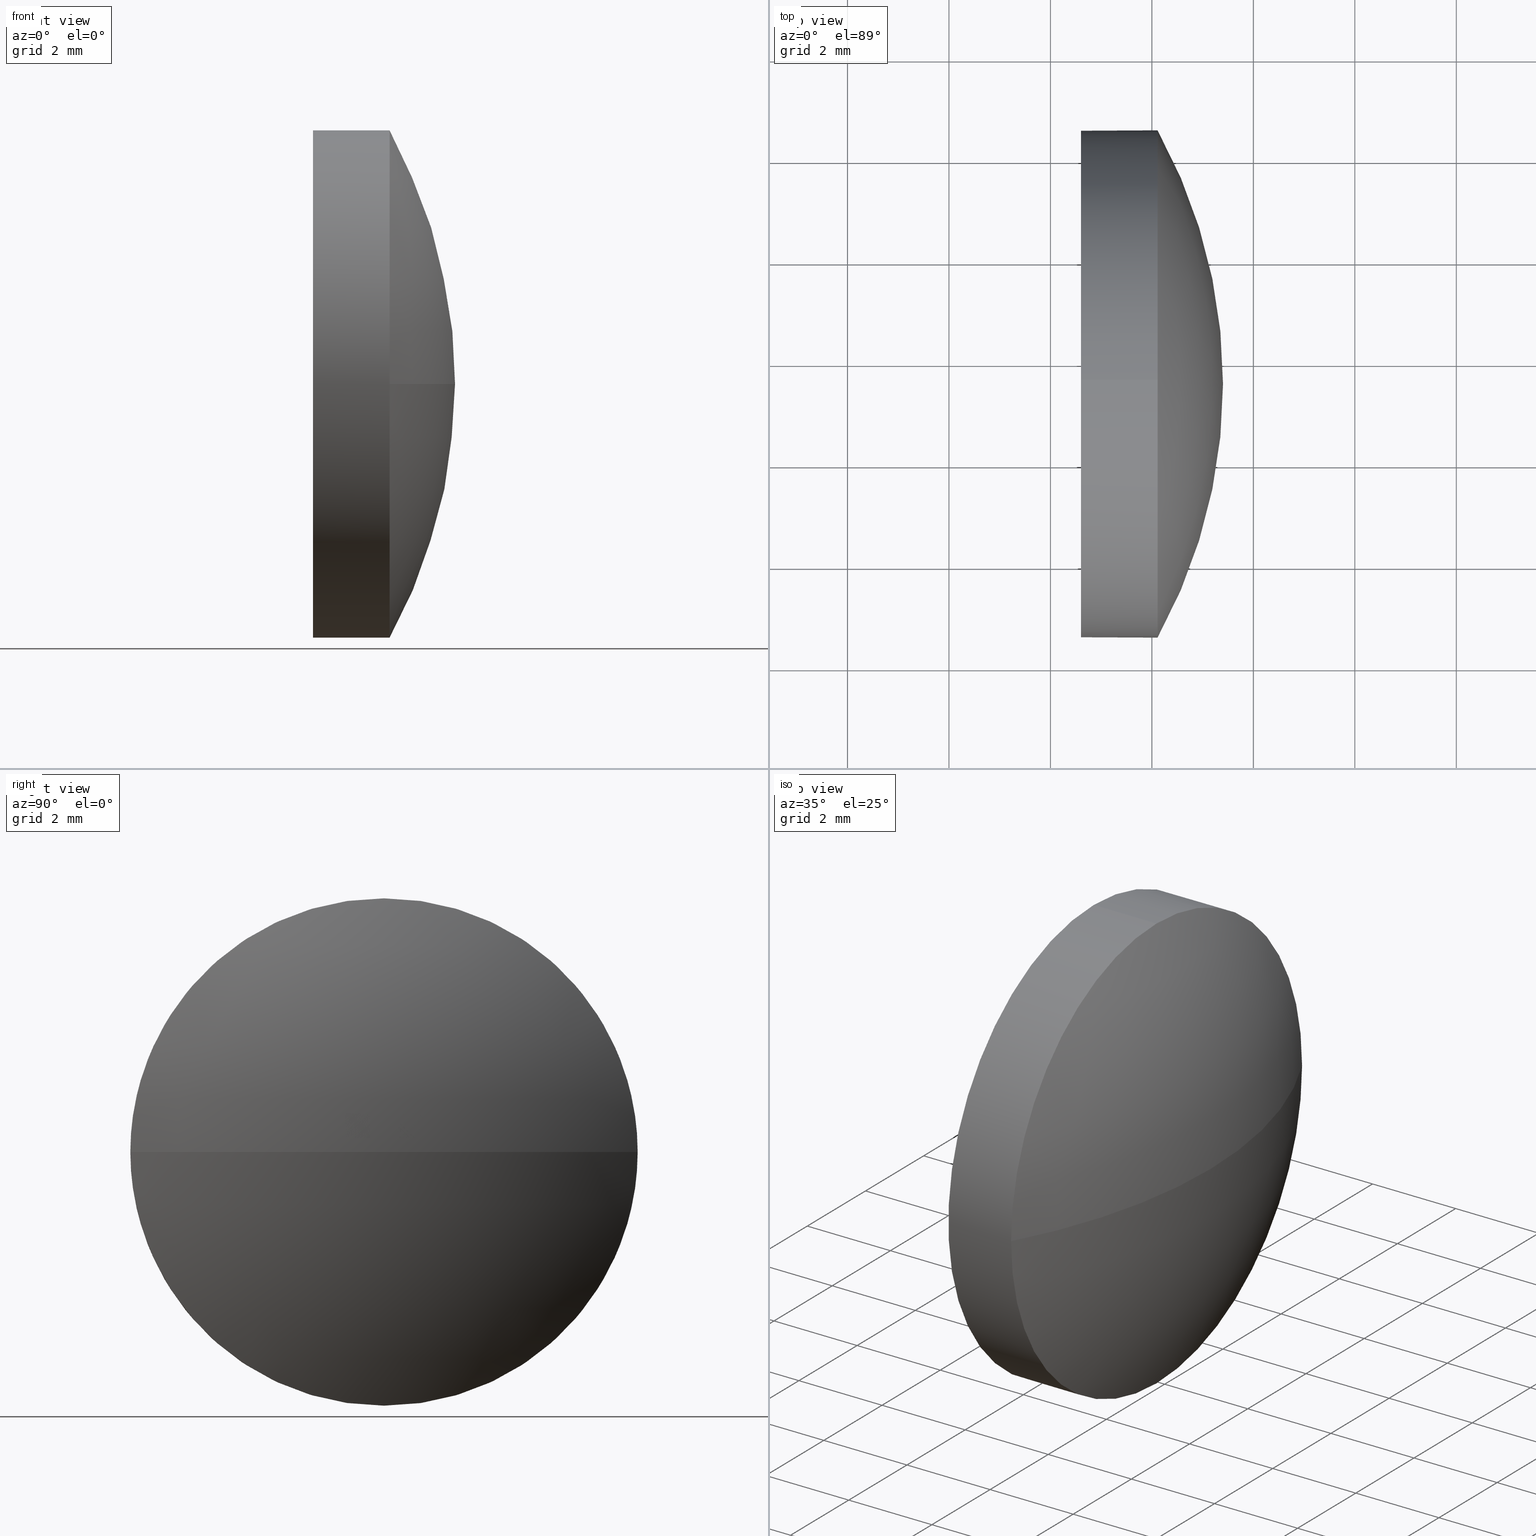
[diagram: canonical four-view strip — front | top / right | iso, engineering-drawing reading convention]
A machine part, canonical four-view strip (front | top / right | iso — engineering-drawing reading convention). The complete STEP part file that produces these views, byte-faithful:
ISO-10303-21;
HEADER;
FILE_DESCRIPTION (( 'STEP AP214' ),
    '1' );
FILE_NAME ('100102.STEP',
    '2019-05-13T07:31:49',
    ( '' ),
    ( '' ),
    'SwSTEP 2.0',
    'SolidWorks 2016',
    '' );
FILE_SCHEMA (( 'AUTOMOTIVE_DESIGN' ));
ENDSEC;

DATA;
#1 = ORIENTED_EDGE ( 'NONE', *, *, #30, .F. ) ;
#2 = CARTESIAN_POINT ( 'NONE',  ( 652.1120024651052100, 189.5627684869003800, 0.0000000000000000000 ) ) ;
#3 = DIRECTION ( 'NONE',  ( 0.0000000000000000000, 1.000000000000000000, 1.224646799147353200E-016 ) ) ;
#4 = CARTESIAN_POINT ( 'NONE',  ( 643.0670799844850800, 189.5627684869003500, 0.0000000000000000000 ) ) ;
#5 = AXIS2_PLACEMENT_3D ( 'NONE', #15, #14, #31 ) ;
#6 = DIRECTION ( 'NONE',  ( -0.0000000000000000000, 0.0000000000000000000, -1.000000000000000000 ) ) ;
#7 = MECHANICAL_DESIGN_GEOMETRIC_PRESENTATION_REPRESENTATION (  '', ( #44 ), #87 ) ;
#8 = DIRECTION ( 'NONE',  ( 1.000000000000000000, 0.0000000000000000000, 0.0000000000000000000 ) ) ;
#9 = AXIS2_PLACEMENT_3D ( 'NONE', #78, #22, #128 ) ;
#10 = APPLICATION_CONTEXT ( 'automotive_design' ) ;
#11 = EDGE_LOOP ( 'NONE', ( #45, #119, #186, #124 ) ) ;
#12 = EDGE_CURVE ( 'NONE', #135, #75, #102, .T. ) ;
#13 = SPHERICAL_SURFACE ( 'NONE', #137, 10.33492248062017900 ) ;
#14 = DIRECTION ( 'NONE',  ( -1.000000000000000000, -0.0000000000000000000, -0.0000000000000000000 ) ) ;
#15 = CARTESIAN_POINT ( 'NONE',  ( 652.1120024651052100, 189.5627684869003800, 0.0000000000000000000 ) ) ;
#16 = AXIS2_PLACEMENT_3D ( 'NONE', #4, #18, #175 ) ;
#17 = EDGE_LOOP ( 'NONE', ( #60, #112, #68, #42, #29 ) ) ;
#18 = DIRECTION ( 'NONE',  ( -0.0000000000000000000, 0.0000000000000000000, 1.000000000000000000 ) ) ;
#19 = DIRECTION ( 'NONE',  ( -1.000000000000000000, -0.0000000000000000000, -0.0000000000000000000 ) ) ;
#20 = PRODUCT ( '100102', '100102', '', ( #144 ) ) ;
#21 = DIRECTION ( 'NONE',  ( 0.0000000000000000000, 0.0000000000000000000, 1.000000000000000000 ) ) ;
#22 = DIRECTION ( 'NONE',  ( -1.000000000000000000, -0.0000000000000000000, -0.0000000000000000000 ) ) ;
#23 = PLANE ( 'NONE',  #71 ) ;
#24 = EDGE_CURVE ( 'NONE', #142, #174, #185, .T. ) ;
#25 = APPLICATION_PROTOCOL_DEFINITION ( 'draft international standard', 'automotive_design', 1998, #10 ) ;
#26 = ORIENTED_EDGE ( 'NONE', *, *, #27, .T. ) ;
#27 = EDGE_CURVE ( 'NONE', #28, #135, #89, .T. ) ;
#28 = VERTEX_POINT ( 'NONE', #138 ) ;
#29 = ORIENTED_EDGE ( 'NONE', *, *, #59, .F. ) ;
#30 = EDGE_CURVE ( 'NONE', #105, #28, #172, .T. ) ;
#31 = DIRECTION ( 'NONE',  ( 0.0000000000000000000, 0.0000000000000000000, 1.000000000000000000 ) ) ;
#32 = CARTESIAN_POINT ( 'NONE',  ( 649.6604519933307500, 189.5627684869003800, 0.0000000000000000000 ) ) ;
#33 = ORIENTED_EDGE ( 'NONE', *, *, #35, .T. ) ;
#34 = FILL_AREA_STYLE ('',( #77 ) ) ;
#35 = EDGE_CURVE ( 'NONE', #107, #75, #37, .T. ) ;
#36 =( LENGTH_UNIT ( ) NAMED_UNIT ( * ) SI_UNIT ( .MILLI., .METRE. ) );
#37 = CIRCLE ( 'NONE', #173, 5.000000000000004400 ) ;
#38 =( NAMED_UNIT ( * ) PLANE_ANGLE_UNIT ( ) SI_UNIT ( $, .RADIAN. ) );
#39 = PRODUCT_DEFINITION_CONTEXT ( 'detailed design', #10, 'design' ) ;
#40 = FACE_OUTER_BOUND ( 'NONE', #93, .T. ) ;
#41 = COLOUR_RGB ( '',1.000000000000000000, 1.000000000000000000, 1.000000000000000000 ) ;
#42 = ORIENTED_EDGE ( 'NONE', *, *, #55, .T. ) ;
#43 = ADVANCED_FACE ( 'NONE', ( #136 ), #47, .T. ) ;
#44 = STYLED_ITEM ( 'NONE', ( #69 ), #104 ) ;
#45 = ORIENTED_EDGE ( 'NONE', *, *, #106, .F. ) ;
#46 = FACE_OUTER_BOUND ( 'NONE', #123, .T. ) ;
#47 = CYLINDRICAL_SURFACE ( 'NONE', #122, 5.000000000000004400 ) ;
#48 = EDGE_CURVE ( 'NONE', #174, #28, #168, .T. ) ;
#49 = AXIS2_PLACEMENT_3D ( 'NONE', #51, #155, #3 ) ;
#50 = CARTESIAN_POINT ( 'NONE',  ( 650.6020024651052200, 189.5627684869003800, 0.0000000000000000000 ) ) ;
#51 = CARTESIAN_POINT ( 'NONE',  ( 643.0670799844850800, 189.5627684869003500, 0.0000000000000000000 ) ) ;
#52 = DIRECTION ( 'NONE',  ( 0.0000000000000000000, 0.0000000000000000000, 1.000000000000000000 ) ) ;
#53 = CARTESIAN_POINT ( 'NONE',  ( 0.0000000000000000000, 0.0000000000000000000, 0.0000000000000000000 ) ) ;
#54 = LINE ( 'NONE', #176, #165 ) ;
#55 = EDGE_CURVE ( 'NONE', #174, #107, #54, .T. ) ;
#56 = STYLED_ITEM ( 'NONE', ( #96 ), #120 ) ;
#57 = ORIENTED_EDGE ( 'NONE', *, *, #151, .F. ) ;
#58 = CIRCLE ( 'NONE', #81, 5.000000000000004400 ) ;
#59 = EDGE_CURVE ( 'NONE', #75, #107, #131, .T. ) ;
#60 = ORIENTED_EDGE ( 'NONE', *, *, #12, .F. ) ;
#61 = CARTESIAN_POINT ( 'NONE',  ( 643.0670799844850800, 189.5627684869003500, 0.0000000000000000000 ) ) ;
#62 = CARTESIAN_POINT ( 'NONE',  ( 650.6020024651052200, 189.5627684869003800, -5.000000000000004400 ) ) ;
#63 = CIRCLE ( 'NONE', #49, 10.33492248062017900 ) ;
#64 = AXIS2_PLACEMENT_3D ( 'NONE', #61, #180, #94 ) ;
#65 = SURFACE_STYLE_USAGE ( .BOTH. , #99 ) ;
#66 = FILL_AREA_STYLE ('',( #118 ) ) ;
#67 = DIRECTION ( 'NONE',  ( 0.0000000000000000000, 0.0000000000000000000, 1.000000000000000000 ) ) ;
#68 = ORIENTED_EDGE ( 'NONE', *, *, #24, .T. ) ;
#69 = PRESENTATION_STYLE_ASSIGNMENT (( #164 ) ) ;
#70 = ORIENTED_EDGE ( 'NONE', *, *, #48, .T. ) ;
#71 = AXIS2_PLACEMENT_3D ( 'NONE', #50, #167, #95 ) ;
#72 = PRESENTATION_LAYER_ASSIGNMENT (  '', '', ( #44 ) ) ;
#73 = PRODUCT_RELATED_PRODUCT_CATEGORY ( 'part', '', ( #20 ) ) ;
#74 = DIRECTION ( 'NONE',  ( -1.000000000000000000, -0.0000000000000000000, -0.0000000000000000000 ) ) ;
#75 = VERTEX_POINT ( 'NONE', #62 ) ;
#76 =( LENGTH_UNIT ( ) NAMED_UNIT ( * ) SI_UNIT ( .MILLI., .METRE. ) );
#77 = FILL_AREA_STYLE_COLOUR ( '', #41 ) ;
#78 = CARTESIAN_POINT ( 'NONE',  ( 652.1120024651052100, 189.5627684869003800, 0.0000000000000000000 ) ) ;
#79 = DIRECTION ( 'NONE',  ( -1.000000000000000000, -0.0000000000000000000, -0.0000000000000000000 ) ) ;
#80 = CARTESIAN_POINT ( 'NONE',  ( 650.6020024651052200, 189.5627684869003800, 0.0000000000000000000 ) ) ;
#81 = AXIS2_PLACEMENT_3D ( 'NONE', #158, #181, #101 ) ;
#82 = VECTOR ( 'NONE', #163, 1000.000000000000000 ) ;
#83 =( NAMED_UNIT ( * ) SI_UNIT ( $, .STERADIAN. ) SOLID_ANGLE_UNIT ( ) );
#84 = ADVANCED_FACE ( 'NONE', ( #115 ), #170, .T. ) ;
#85 =( NAMED_UNIT ( * ) PLANE_ANGLE_UNIT ( ) SI_UNIT ( $, .RADIAN. ) );
#86 = ORIENTED_EDGE ( 'NONE', *, *, #106, .T. ) ;
#87 =( GEOMETRIC_REPRESENTATION_CONTEXT ( 3 ) GLOBAL_UNCERTAINTY_ASSIGNED_CONTEXT ( ( #177 ) ) GLOBAL_UNIT_ASSIGNED_CONTEXT ( ( #76, #141, #140 ) ) REPRESENTATION_CONTEXT ( 'NONE', 'WORKASPACE' ) );
#88 = UNCERTAINTY_MEASURE_WITH_UNIT (LENGTH_MEASURE( 1.000000000000000100E-005 ), #133, 'distance_accuracy_value', 'NONE');
#89 = CIRCLE ( 'NONE', #5, 5.000000000000004400 ) ;
#90 = CARTESIAN_POINT ( 'NONE',  ( 649.6604519933307500, 189.5627684869003800, -5.000000000000004400 ) ) ;
#91 = AXIS2_PLACEMENT_3D ( 'NONE', #32, #125, #130 ) ;
#92 = DIRECTION ( 'NONE',  ( -1.000000000000000000, -0.0000000000000000000, -0.0000000000000000000 ) ) ;
#93 = EDGE_LOOP ( 'NONE', ( #33, #178 ) ) ;
#94 = DIRECTION ( 'NONE',  ( 0.0000000000000000000, 1.000000000000000000, 0.0000000000000000000 ) ) ;
#95 = DIRECTION ( 'NONE',  ( 0.0000000000000000000, 0.0000000000000000000, -1.000000000000000000 ) ) ;
#96 = PRESENTATION_STYLE_ASSIGNMENT (( #65 ) ) ;
#97 =( GEOMETRIC_REPRESENTATION_CONTEXT ( 3 ) GLOBAL_UNCERTAINTY_ASSIGNED_CONTEXT ( ( #88 ) ) GLOBAL_UNIT_ASSIGNED_CONTEXT ( ( #133, #85, #83 ) ) REPRESENTATION_CONTEXT ( 'NONE', 'WORKASPACE' ) );
#98 = DIRECTION ( 'NONE',  ( -1.000000000000000000, -0.0000000000000000000, -0.0000000000000000000 ) ) ;
#99 = SURFACE_SIDE_STYLE ('',( #153 ) ) ;
#100 = MECHANICAL_DESIGN_GEOMETRIC_PRESENTATION_REPRESENTATION (  '', ( #56 ), #109 ) ;
#101 = DIRECTION ( 'NONE',  ( 0.0000000000000000000, 0.0000000000000000000, 1.000000000000000000 ) ) ;
#102 = LINE ( 'NONE', #90, #82 ) ;
#103 = PRODUCT_DEFINITION ( 'δ֪', '', #184, #39 ) ;
#104 = MANIFOLD_SOLID_BREP ( '��ת1', #157 ) ;
#105 = VERTEX_POINT ( 'NONE', #110 ) ;
#106 = EDGE_CURVE ( 'NONE', #105, #142, #63, .T. ) ;
#107 = VERTEX_POINT ( 'NONE', #179 ) ;
#108 = CARTESIAN_POINT ( 'NONE',  ( 649.6604519933307500, 189.5627684869003800, 0.0000000000000000000 ) ) ;
#109 =( GEOMETRIC_REPRESENTATION_CONTEXT ( 3 ) GLOBAL_UNCERTAINTY_ASSIGNED_CONTEXT ( ( #169 ) ) GLOBAL_UNIT_ASSIGNED_CONTEXT ( ( #36, #38, #145 ) ) REPRESENTATION_CONTEXT ( 'NONE', 'WORKASPACE' ) );
#110 = CARTESIAN_POINT ( 'NONE',  ( 653.4020024651052800, 189.5627684869003500, 0.0000000000000000000 ) ) ;
#111 = CARTESIAN_POINT ( 'NONE',  ( 650.6020024651052200, 189.5627684869003800, 0.0000000000000000000 ) ) ;
#112 = ORIENTED_EDGE ( 'NONE', *, *, #151, .T. ) ;
#113 = DIRECTION ( 'NONE',  ( 0.0000000000000000000, 1.000000000000000000, 0.0000000000000000000 ) ) ;
#114 = SURFACE_SIDE_STYLE ('',( #147 ) ) ;
#115 = FACE_OUTER_BOUND ( 'NONE', #11, .T. ) ;
#116 = ADVANCED_FACE ( 'NONE', ( #40 ), #23, .F. ) ;
#117 = APPLICATION_CONTEXT ( 'automotive_design' ) ;
#118 = FILL_AREA_STYLE_COLOUR ( '', #143 ) ;
#119 = ORIENTED_EDGE ( 'NONE', *, *, #30, .T. ) ;
#120 = ADVANCED_BREP_SHAPE_REPRESENTATION ( '100102', ( #104, #160 ), #97 ) ;
#121 = ADVANCED_FACE ( 'NONE', ( #46 ), #13, .T. ) ;
#122 = AXIS2_PLACEMENT_3D ( 'NONE', #108, #74, #21 ) ;
#123 = EDGE_LOOP ( 'NONE', ( #1, #86, #57, #154 ) ) ;
#124 = ORIENTED_EDGE ( 'NONE', *, *, #24, .F. ) ;
#125 = DIRECTION ( 'NONE',  ( -1.000000000000000000, -0.0000000000000000000, -0.0000000000000000000 ) ) ;
#126 = PRODUCT_DEFINITION_SHAPE ( 'NONE', 'NONE',  #103 ) ;
#127 = DIRECTION ( 'NONE',  ( 0.0000000000000000000, 0.0000000000000000000, 1.000000000000000000 ) ) ;
#128 = DIRECTION ( 'NONE',  ( 0.0000000000000000000, 0.0000000000000000000, 1.000000000000000000 ) ) ;
#129 = CARTESIAN_POINT ( 'NONE',  ( 643.0670799844850800, 189.5627684869003500, 0.0000000000000000000 ) ) ;
#130 = DIRECTION ( 'NONE',  ( 0.0000000000000000000, 0.0000000000000000000, 1.000000000000000000 ) ) ;
#131 = CIRCLE ( 'NONE', #134, 5.000000000000004400 ) ;
#132 = ADVANCED_FACE ( 'NONE', ( #159 ), #156, .T. ) ;
#133 =( LENGTH_UNIT ( ) NAMED_UNIT ( * ) SI_UNIT ( .MILLI., .METRE. ) );
#134 = AXIS2_PLACEMENT_3D ( 'NONE', #80, #19, #127 ) ;
#135 = VERTEX_POINT ( 'NONE', #139 ) ;
#136 = FACE_OUTER_BOUND ( 'NONE', #17, .T. ) ;
#137 = AXIS2_PLACEMENT_3D ( 'NONE', #129, #6, #113 ) ;
#138 = CARTESIAN_POINT ( 'NONE',  ( 652.1120024651052100, 194.5627684869003800, 0.0000000000000000000 ) ) ;
#139 = CARTESIAN_POINT ( 'NONE',  ( 652.1120024651052100, 189.5627684869003800, -5.000000000000004400 ) ) ;
#140 =( NAMED_UNIT ( * ) SI_UNIT ( $, .STERADIAN. ) SOLID_ANGLE_UNIT ( ) );
#141 =( NAMED_UNIT ( * ) PLANE_ANGLE_UNIT ( ) SI_UNIT ( $, .RADIAN. ) );
#142 = VERTEX_POINT ( 'NONE', #152 ) ;
#143 = COLOUR_RGB ( '',1.000000000000000000, 1.000000000000000000, 1.000000000000000000 ) ;
#144 = PRODUCT_CONTEXT ( 'NONE', #117, 'mechanical' ) ;
#145 =( NAMED_UNIT ( * ) SI_UNIT ( $, .STERADIAN. ) SOLID_ANGLE_UNIT ( ) );
#146 = SHAPE_DEFINITION_REPRESENTATION ( #126, #120 ) ;
#147 = SURFACE_STYLE_FILL_AREA ( #34 ) ;
#148 = ORIENTED_EDGE ( 'NONE', *, *, #55, .F. ) ;
#149 = PRESENTATION_LAYER_ASSIGNMENT (  '', '', ( #56 ) ) ;
#150 = ORIENTED_EDGE ( 'NONE', *, *, #35, .F. ) ;
#151 = EDGE_CURVE ( 'NONE', #135, #142, #58, .T. ) ;
#152 = CARTESIAN_POINT ( 'NONE',  ( 652.1120024651052100, 184.5627684869003500, -6.123233995736773200E-016 ) ) ;
#153 = SURFACE_STYLE_FILL_AREA ( #66 ) ;
#154 = ORIENTED_EDGE ( 'NONE', *, *, #27, .F. ) ;
#155 = DIRECTION ( 'NONE',  ( 0.0000000000000000000, 1.224646799147353200E-016, -1.000000000000000000 ) ) ;
#156 = CYLINDRICAL_SURFACE ( 'NONE', #91, 5.000000000000004400 ) ;
#157 = CLOSED_SHELL ( 'NONE', ( #132, #121, #84, #43, #116 ) ) ;
#158 = CARTESIAN_POINT ( 'NONE',  ( 652.1120024651052100, 189.5627684869003800, 0.0000000000000000000 ) ) ;
#159 = FACE_OUTER_BOUND ( 'NONE', #171, .T. ) ;
#160 = AXIS2_PLACEMENT_3D ( 'NONE', #53, #67, #8 ) ;
#161 = ORIENTED_EDGE ( 'NONE', *, *, #12, .T. ) ;
#162 = DIRECTION ( 'NONE',  ( 0.0000000000000000000, 0.0000000000000000000, 1.000000000000000000 ) ) ;
#163 = DIRECTION ( 'NONE',  ( -1.000000000000000000, -0.0000000000000000000, -0.0000000000000000000 ) ) ;
#164 = SURFACE_STYLE_USAGE ( .BOTH. , #114 ) ;
#165 = VECTOR ( 'NONE', #98, 1000.000000000000000 ) ;
#166 = CARTESIAN_POINT ( 'NONE',  ( 652.1120024651052100, 189.5627684869003800, 5.000000000000004400 ) ) ;
#167 = DIRECTION ( 'NONE',  ( 1.000000000000000000, 0.0000000000000000000, 0.0000000000000000000 ) ) ;
#168 = CIRCLE ( 'NONE', #9, 5.000000000000004400 ) ;
#169 = UNCERTAINTY_MEASURE_WITH_UNIT (LENGTH_MEASURE( 1.000000000000000100E-005 ), #36, 'distance_accuracy_value', 'NONE');
#170 = SPHERICAL_SURFACE ( 'NONE', #64, 10.33492248062017900 ) ;
#171 = EDGE_LOOP ( 'NONE', ( #26, #161, #150, #148, #70 ) ) ;
#172 = CIRCLE ( 'NONE', #16, 10.33492248062017900 ) ;
#173 = AXIS2_PLACEMENT_3D ( 'NONE', #111, #79, #52 ) ;
#174 = VERTEX_POINT ( 'NONE', #166 ) ;
#175 = DIRECTION ( 'NONE',  ( 1.000000000000000000, 0.0000000000000000000, 0.0000000000000000000 ) ) ;
#176 = CARTESIAN_POINT ( 'NONE',  ( 649.6604519933307500, 189.5627684869003800, 5.000000000000004400 ) ) ;
#177 = UNCERTAINTY_MEASURE_WITH_UNIT (LENGTH_MEASURE( 1.000000000000000100E-005 ), #76, 'distance_accuracy_value', 'NONE');
#178 = ORIENTED_EDGE ( 'NONE', *, *, #59, .T. ) ;
#179 = CARTESIAN_POINT ( 'NONE',  ( 650.6020024651052200, 189.5627684869003800, 5.000000000000004400 ) ) ;
#180 = DIRECTION ( 'NONE',  ( -0.0000000000000000000, 0.0000000000000000000, -1.000000000000000000 ) ) ;
#181 = DIRECTION ( 'NONE',  ( -1.000000000000000000, -0.0000000000000000000, -0.0000000000000000000 ) ) ;
#182 = APPLICATION_PROTOCOL_DEFINITION ( 'draft international standard', 'automotive_design', 1998, #117 ) ;
#183 = AXIS2_PLACEMENT_3D ( 'NONE', #2, #92, #162 ) ;
#184 = PRODUCT_DEFINITION_FORMATION_WITH_SPECIFIED_SOURCE ( '�κ�', '', #20, .NOT_KNOWN. ) ;
#185 = CIRCLE ( 'NONE', #183, 5.000000000000004400 ) ;
#186 = ORIENTED_EDGE ( 'NONE', *, *, #48, .F. ) ;
ENDSEC;
END-ISO-10303-21;
